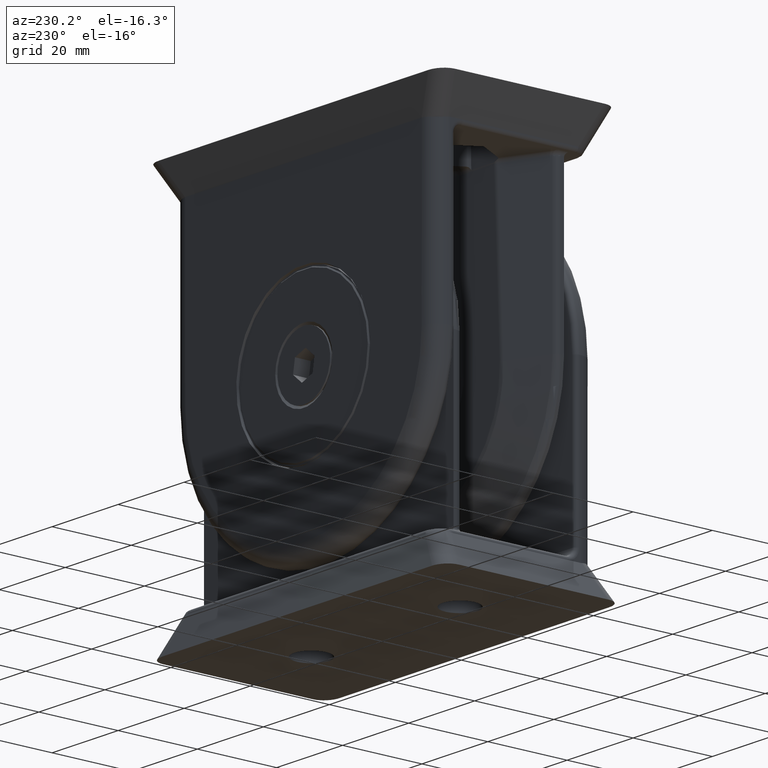
[diagram: clean part render]
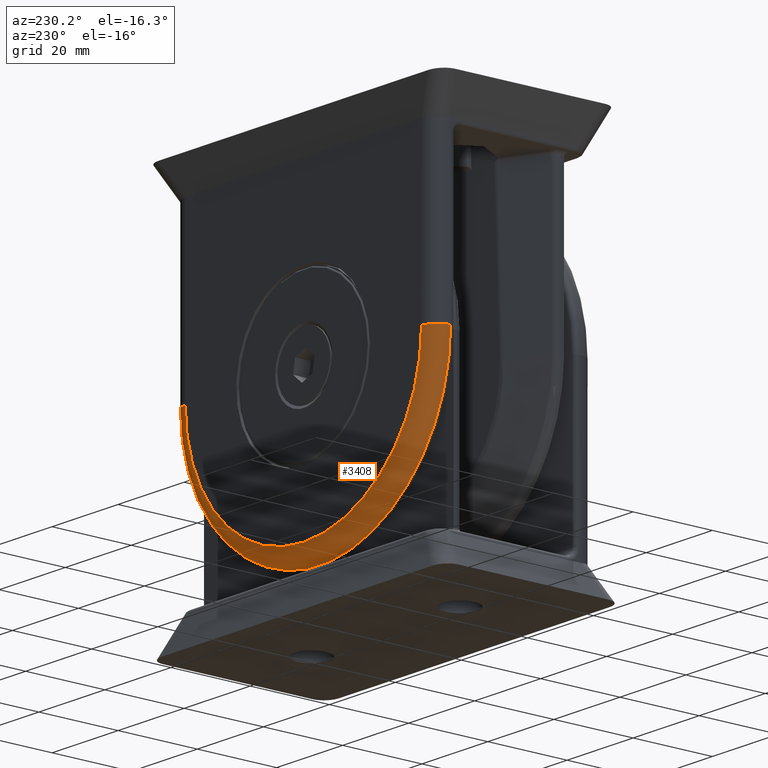
[diagram: same view with one face highlighted and labeled with its STEP entity id]
A machine part, auxiliary view. The second image highlights one B-rep face of the part: STEP entity #3408.
In plain terms, the highlighted toroidal blend (fillet) surface has major radius 35.8 mm and minor (blend) radius 4 mm.
Its self-contained STEP definition (entity closure, byte-faithful):
#815=FACE_OUTER_BOUND('',#1034,.T.);
#1034=EDGE_LOOP('',(#2333,#2334,#2335,#2336));
#1279=CIRCLE('',#3724,39.8);
#1280=CIRCLE('',#3725,4.);
#1281=CIRCLE('',#3726,35.8);
#1282=CIRCLE('',#3727,4.);
#1484=VERTEX_POINT('',#5315);
#1485=VERTEX_POINT('',#5316);
#1486=VERTEX_POINT('',#5318);
#1487=VERTEX_POINT('',#5320);
#1809=EDGE_CURVE('',#1484,#1485,#1279,.T.);
#1810=EDGE_CURVE('',#1484,#1486,#1280,.T.);
#1811=EDGE_CURVE('',#1486,#1487,#1281,.T.);
#1812=EDGE_CURVE('',#1487,#1485,#1282,.T.);
#2333=ORIENTED_EDGE('',*,*,#1809,.F.);
#2334=ORIENTED_EDGE('',*,*,#1810,.T.);
#2335=ORIENTED_EDGE('',*,*,#1811,.T.);
#2336=ORIENTED_EDGE('',*,*,#1812,.T.);
#3376=TOROIDAL_SURFACE('',#3723,35.8,4.00000000000001);
#3408=ADVANCED_FACE('',(#815),#3376,.T.);
#3723=AXIS2_PLACEMENT_3D('',#5314,#4183,#4184);
#3724=AXIS2_PLACEMENT_3D('',#5317,#4185,#4186);
#3725=AXIS2_PLACEMENT_3D('',#5319,#4187,#4188);
#3726=AXIS2_PLACEMENT_3D('',#5321,#4189,#4190);
#3727=AXIS2_PLACEMENT_3D('',#5322,#4191,#4192);
#4183=DIRECTION('center_axis',(-2.65101250476136E-15,-1.,2.51926936150345E-15));
#4184=DIRECTION('ref_axis',(0.,-2.54402863934206E-15,-1.));
#4185=DIRECTION('center_axis',(0.,-1.,0.));
#4186=DIRECTION('ref_axis',(0.,0.,-1.));
#4187=DIRECTION('center_axis',(-1.83697019872103E-16,0.,-1.));
#4188=DIRECTION('ref_axis',(-1.,0.,1.83697019872103E-16));
#4189=DIRECTION('center_axis',(-1.49738295156924E-16,-1.,1.49738295156924E-16));
#4190=DIRECTION('ref_axis',(1.,-1.24047265321247E-16,2.48094530642493E-16));
#4191=DIRECTION('center_axis',(-5.0532154980743E-16,0.,-1.));
#4192=DIRECTION('ref_axis',(1.,0.,-5.0532154980743E-16));
#5314=CARTESIAN_POINT('Origin',(-2.66453525910038E-14,15.9000000000001,
-41.));
#5315=CARTESIAN_POINT('',(-39.8,15.9,-41.));
#5316=CARTESIAN_POINT('',(39.8,15.9,-41.));
#5317=CARTESIAN_POINT('Origin',(0.,15.9,-41.));
#5318=CARTESIAN_POINT('',(-35.8,19.9,-41.));
#5319=CARTESIAN_POINT('Origin',(-35.8,15.9,-41.));
#5320=CARTESIAN_POINT('',(35.8,19.9,-41.));
#5321=CARTESIAN_POINT('Origin',(-6.61540342496661E-15,19.9,-41.));
#5322=CARTESIAN_POINT('Origin',(35.8,15.9,-41.));